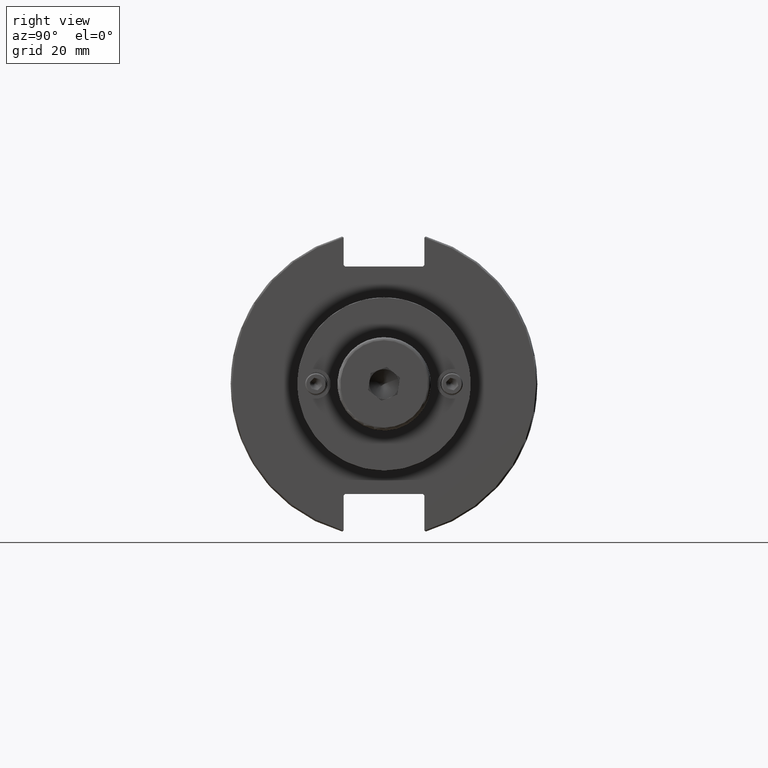
[diagram: clean part render]
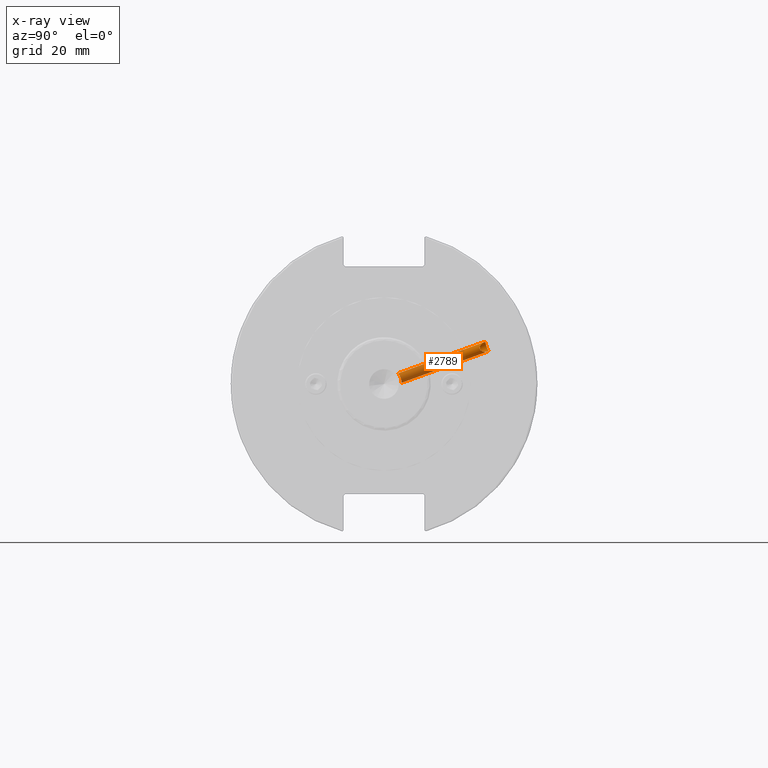
[diagram: x-ray — body ghosted, one internal face saturated and labeled with its STEP entity id]
A machine part, right view, then the same camera in x-ray: the body is ghosted and one INTERNAL B-rep face — a face not visible from any outside direction — is saturated and labeled: STEP entity #2789.
In plain terms, the highlighted cylindrical surface (bore or boss wall) has radius 1.621 mm, axis along (-0, 0.9397, 0.342).
Its self-contained STEP definition (entity closure, byte-faithful):
#483=B_SPLINE_CURVE_WITH_KNOTS('',3,(#4383,#4384,#4385,#4386,#4387,#4388,
#4389,#4390,#4391,#4392,#4393,#4394,#4395,#4396,#4397,#4398,#4399,#4400),
 .UNSPECIFIED.,.F.,.F.,(4,2,2,2,2,2,2,2,4),(0.532632743614117,0.552905902975805,
0.614346574803244,0.675772210762899,0.737197846722553,0.798623482682207,
0.860049118641861,0.921489790469301,0.941762949830991),.UNSPECIFIED.);
#485=B_SPLINE_CURVE_WITH_KNOTS('',3,(#4410,#4411,#4412,#4413,#4414,#4415,
#4416,#4417,#4418,#4419),.UNSPECIFIED.,.F.,.F.,(4,2,2,2,4),(0.245732615574182,
0.307158251533836,0.36858388749349,0.430024559320928,0.450297718682616),
 .UNSPECIFIED.);
#486=B_SPLINE_CURVE_WITH_KNOTS('',3,(#4421,#4422,#4423,#4424,#4425,#4426,
#4427,#4428,#4429,#4430),.UNSPECIFIED.,.F.,.F.,(4,2,2,2,4),(0.0411675124657458,
0.0614406718274373,0.122881343654875,0.184306979614528,0.245732615574182),
 .UNSPECIFIED.);
#490=B_SPLINE_CURVE_WITH_KNOTS('',3,(#4493,#4494,#4495,#4496,#4497,#4498,
#4499,#4500,#4501,#4502,#4503,#4504,#4505,#4506,#4507,#4508,#4509,#4510,
#4511,#4512,#4513,#4514,#4515,#4516,#4517,#4518,#4519,#4520,#4521,#4522,
#4523,#4524),.UNSPECIFIED.,.F.,.F.,(4,2,2,2,2,2,2,2,2,2,2,2,2,2,2,4),(0.,
0.0901464867254987,0.192567236071379,0.257828346844419,0.290458902230939,
0.32308945761746,0.35572001300398,0.3883505683905,0.45361167916354,0.556032428509421,
0.646178915234919,0.678611098115673,0.711043280996427,0.775907646757935,
0.842857882203167,0.896346031951307),.UNSPECIFIED.);
#491=B_SPLINE_CURVE_WITH_KNOTS('',3,(#4525,#4526,#4527,#4528,#4529,#4530,
#4531,#4532,#4533,#4534,#4535,#4536),.UNSPECIFIED.,.F.,.F.,(4,2,2,2,2,4),
(0.896346031951307,0.949834181699448,1.01678441714468,1.08164878290619,
1.11408096578694,1.14651314866769),.UNSPECIFIED.);
#529=CYLINDRICAL_SURFACE('',#3111,1.621);
#629=CIRCLE('',#3110,1.621);
#630=CIRCLE('',#3112,1.621);
#763=FACE_OUTER_BOUND('',#910,.T.);
#910=EDGE_LOOP('',(#2076,#2077,#2078,#2079,#2080,#2081,#2082,#2083,#2084));
#1084=LINE('',#4537,#1250);
#1250=VECTOR('',#3510,1.621);
#1425=VERTEX_POINT('',#4381);
#1426=VERTEX_POINT('',#4382);
#1427=VERTEX_POINT('',#4401);
#1428=VERTEX_POINT('',#4409);
#1429=VERTEX_POINT('',#4420);
#1432=VERTEX_POINT('',#4491);
#1433=VERTEX_POINT('',#4492);
#1675=EDGE_CURVE('',#1425,#1426,#483,.T.);
#1677=EDGE_CURVE('',#1428,#1427,#485,.T.);
#1678=EDGE_CURVE('',#1429,#1428,#486,.T.);
#1685=EDGE_CURVE('',#1425,#1427,#629,.T.);
#1686=EDGE_CURVE('',#1432,#1433,#490,.T.);
#1687=EDGE_CURVE('',#1433,#1432,#491,.T.);
#1688=EDGE_CURVE('',#1433,#1428,#1084,.T.);
#1689=EDGE_CURVE('',#1429,#1426,#630,.T.);
#2076=ORIENTED_EDGE('',*,*,#1686,.F.);
#2077=ORIENTED_EDGE('',*,*,#1687,.F.);
#2078=ORIENTED_EDGE('',*,*,#1688,.T.);
#2079=ORIENTED_EDGE('',*,*,#1677,.T.);
#2080=ORIENTED_EDGE('',*,*,#1685,.F.);
#2081=ORIENTED_EDGE('',*,*,#1675,.T.);
#2082=ORIENTED_EDGE('',*,*,#1689,.F.);
#2083=ORIENTED_EDGE('',*,*,#1678,.T.);
#2084=ORIENTED_EDGE('',*,*,#1688,.F.);
#2789=ADVANCED_FACE('',(#763),#529,.F.);
#3110=AXIS2_PLACEMENT_3D('',#4489,#3506,#3507);
#3111=AXIS2_PLACEMENT_3D('',#4490,#3508,#3509);
#3112=AXIS2_PLACEMENT_3D('',#4538,#3511,#3512);
#3506=DIRECTION('center_axis',(-1.32999192572579E-16,0.939692620785909,
0.342020143325669));
#3507=DIRECTION('ref_axis',(1.,1.41534784492982E-16,0.));
#3508=DIRECTION('center_axis',(-1.32999192572579E-16,0.939692620785909,
0.342020143325669));
#3509=DIRECTION('ref_axis',(1.,1.41534784492982E-16,0.));
#3510=DIRECTION('',(1.32999192572579E-16,-0.939692620785908,-0.342020143325669));
#3511=DIRECTION('center_axis',(-1.32999192572579E-16,0.939692620785909,
0.342020143325669));
#3512=DIRECTION('ref_axis',(1.,1.41534784492982E-16,0.));
#4381=CARTESIAN_POINT('',(11.5538280190791,5.6507234975058,0.390494039308961));
#4382=CARTESIAN_POINT('',(11.5538280190791,4.5797100649904,3.3330792610776));
#4383=CARTESIAN_POINT('Ctrl Pts',(11.5538280190791,5.6507234975058,0.390494039308961));
#4384=CARTESIAN_POINT('Ctrl Pts',(11.6224548012828,5.64940376916859,0.409591436899369));
#4385=CARTESIAN_POINT('Ctrl Pts',(11.6901900015519,5.64766161376943,0.433456015511925));
#4386=CARTESIAN_POINT('Ctrl Pts',(11.9555225294335,5.63834455086959,0.547373783800454));
#4387=CARTESIAN_POINT('Ctrl Pts',(12.1370246056885,5.62570197106737,0.675314247974925));
#4388=CARTESIAN_POINT('Ctrl Pts',(12.4235805113983,5.58333625420266,0.964840813510913));
#4389=CARTESIAN_POINT('Ctrl Pts',(12.5481564508145,5.55066479047596,1.14611512507693));
#4390=CARTESIAN_POINT('Ctrl Pts',(12.7139469390018,5.45560217506688,1.53618501532505));
#4391=CARTESIAN_POINT('Ctrl Pts',(12.7551,5.39263629203818,1.74486643969735));
#4392=CARTESIAN_POINT('Ctrl Pts',(12.7551,5.25257759327291,2.12967455195314));
#4393=CARTESIAN_POINT('Ctrl Pts',(12.7139469390018,5.16667442411487,2.33000748691952));
#4394=CARTESIAN_POINT('Ctrl Pts',(12.5481564508145,4.98876452003406,2.68992343010147));
#4395=CARTESIAN_POINT('Ctrl Pts',(12.4235805113983,4.89727143184138,2.84978842123069));
#4396=CARTESIAN_POINT('Ctrl Pts',(12.1370246056885,4.74362136482271,3.09881079577097));
#4397=CARTESIAN_POINT('Ctrl Pts',(11.9555225294335,4.67106759767799,3.20494537105323));
#4398=CARTESIAN_POINT('Ctrl Pts',(11.6901900015519,4.60497995195959,3.29820033701386));
#4399=CARTESIAN_POINT('Ctrl Pts',(11.6224548012827,4.59097466497963,3.31760150075213));
#4400=CARTESIAN_POINT('Ctrl Pts',(11.5538280190791,4.5797100649904,3.3330792610776));
#4401=CARTESIAN_POINT('',(10.7143719809208,5.6507234975058,0.390494039308961));
#4409=CARTESIAN_POINT('',(9.51309999999999,5.32260694265554,1.93727049582525));
#4410=CARTESIAN_POINT('Ctrl Pts',(9.51309999999999,5.32260694265554,1.93727049582525));
#4411=CARTESIAN_POINT('Ctrl Pts',(9.51309999999999,5.39263629203818,1.74486643969735));
#4412=CARTESIAN_POINT('Ctrl Pts',(9.55425306099822,5.45560217506688,1.53618501532505));
#4413=CARTESIAN_POINT('Ctrl Pts',(9.72004354918545,5.55066479047596,1.14611512507693));
#4414=CARTESIAN_POINT('Ctrl Pts',(9.84461948860173,5.58333625420266,0.964840813510918));
#4415=CARTESIAN_POINT('Ctrl Pts',(10.1311753943115,5.62570197106736,0.675314247974939));
#4416=CARTESIAN_POINT('Ctrl Pts',(10.3126774705665,5.63834455086958,0.547373783800459));
#4417=CARTESIAN_POINT('Ctrl Pts',(10.578009998448,5.64766161376943,0.43345601551193));
#4418=CARTESIAN_POINT('Ctrl Pts',(10.6457451987172,5.64940376916859,0.409591436899369));
#4419=CARTESIAN_POINT('Ctrl Pts',(10.7143719809208,5.6507234975058,0.390494039308961));
#4420=CARTESIAN_POINT('',(10.7143719809209,4.5797100649904,3.3330792610776));
#4421=CARTESIAN_POINT('Ctrl Pts',(10.7143719809209,4.5797100649904,3.3330792610776));
#4422=CARTESIAN_POINT('Ctrl Pts',(10.6457451987172,4.59097466497963,3.31760150075213));
#4423=CARTESIAN_POINT('Ctrl Pts',(10.5780099984481,4.6049799519596,3.29820033701386));
#4424=CARTESIAN_POINT('Ctrl Pts',(10.3126774705665,4.67106759767799,3.20494537105323));
#4425=CARTESIAN_POINT('Ctrl Pts',(10.1311753943115,4.74362136482272,3.09881079577096));
#4426=CARTESIAN_POINT('Ctrl Pts',(9.84461948860173,4.89727143184138,2.84978842123068));
#4427=CARTESIAN_POINT('Ctrl Pts',(9.72004354918545,4.98876452003406,2.68992343010148));
#4428=CARTESIAN_POINT('Ctrl Pts',(9.55425306099822,5.16667442411486,2.33000748691953));
#4429=CARTESIAN_POINT('Ctrl Pts',(9.51309999999999,5.25257759327291,2.12967455195314));
#4430=CARTESIAN_POINT('Ctrl Pts',(9.51309999999999,5.32260694265554,1.93727049582525));
#4489=CARTESIAN_POINT('Origin',(11.1341,5.1152167812481,1.86178665019328));
#4490=CARTESIAN_POINT('Origin',(11.1341,23.9090691969663,8.70218951670665));
#4491=CARTESIAN_POINT('',(11.1341,33.313335016979,10.4000301811349));
#4492=CARTESIAN_POINT('',(9.51309999999999,32.9255829555454,11.9839321416811));
#4493=CARTESIAN_POINT('Ctrl Pts',(11.1341,33.313335016979,10.4000301811349));
#4494=CARTESIAN_POINT('Ctrl Pts',(11.3802455962889,33.1513761728118,10.3410819826819));
#4495=CARTESIAN_POINT('Ctrl Pts',(11.6185813616689,32.8827152960876,10.3088388227607));
#4496=CARTESIAN_POINT('Ctrl Pts',(12.0026245261189,32.3683985728797,10.305241826661));
#4497=CARTESIAN_POINT('Ctrl Pts',(12.2151564972204,32.0202637587832,10.3436146141384));
#4498=CARTESIAN_POINT('Ctrl Pts',(12.470544244763,31.5456859836842,10.4918253969895));
#4499=CARTESIAN_POINT('Ctrl Pts',(12.5682510694473,31.3466778285718,10.5797338737154));
#4500=CARTESIAN_POINT('Ctrl Pts',(12.6749644342972,31.0919332722504,10.7712375769509));
#4501=CARTESIAN_POINT('Ctrl Pts',(12.7040411918509,31.0141779263436,10.8449328856202));
#4502=CARTESIAN_POINT('Ctrl Pts',(12.7440975493615,30.8830267246802,11.0119800058459));
#4503=CARTESIAN_POINT('Ctrl Pts',(12.7551,30.8296132843075,11.1053125302729));
#4504=CARTESIAN_POINT('Ctrl Pts',(12.7551,30.7552112361069,11.3097304776653));
#4505=CARTESIAN_POINT('Ctrl Pts',(12.7440975493615,30.7361353150098,11.4155608370271));
#4506=CARTESIAN_POINT('Ctrl Pts',(12.7040411918509,30.7292271451376,11.6278287226398));
#4507=CARTESIAN_POINT('Ctrl Pts',(12.6749644342972,30.7414207644876,11.7342627772656));
#4508=CARTESIAN_POINT('Ctrl Pts',(12.5682510694473,30.8134702086235,12.0447097694044));
#4509=CARTESIAN_POINT('Ctrl Pts',(12.470544244763,30.9094128203569,12.2399715458362));
#4510=CARTESIAN_POINT('Ctrl Pts',(12.2151564972204,31.1776924329606,12.6585603061157));
#4511=CARTESIAN_POINT('Ctrl Pts',(12.0026245261189,31.419713620416,12.9117323117316));
#4512=CARTESIAN_POINT('Ctrl Pts',(11.6185813616689,31.8160151927575,13.2395732699901));
#4513=CARTESIAN_POINT('Ctrl Pts',(11.3802455962889,32.04254686815,13.3875654592698));
#4514=CARTESIAN_POINT('Ctrl Pts',(11.0455437036416,32.2627739715027,13.4677215696688));
#4515=CARTESIAN_POINT('Ctrl Pts',(10.9490410684419,32.3178177707779,13.4799176447313));
#4516=CARTESIAN_POINT('Ctrl Pts',(10.7480580973579,32.4122554138726,13.4760148069679));
#4517=CARTESIAN_POINT('Ctrl Pts',(10.6435548972,32.4515923889905,13.4597199648405));
#4518=CARTESIAN_POINT('Ctrl Pts',(10.3366162582338,32.5470684103066,13.3661104048289));
#4519=CARTESIAN_POINT('Ctrl Pts',(10.1402784858692,32.5832298796224,13.2412869364784));
#4520=CARTESIAN_POINT('Ctrl Pts',(9.83058058671521,32.6561835398779,12.9382662768301));
#4521=CARTESIAN_POINT('Ctrl Pts',(9.68758434388227,32.703450459206,12.7168272168347));
#4522=CARTESIAN_POINT('Ctrl Pts',(9.55039858081597,32.8019228385611,12.3526096727086));
#4523=CARTESIAN_POINT('Ctrl Pts',(9.51309999999999,32.8646028734018,12.1514735404072));
#4524=CARTESIAN_POINT('Ctrl Pts',(9.51309999999999,32.9255829555454,11.9839321416811));
#4525=CARTESIAN_POINT('Ctrl Pts',(9.51309999999999,32.9255829555454,11.9839321416811));
#4526=CARTESIAN_POINT('Ctrl Pts',(9.51309999999999,32.986563037689,11.8163907429551));
#4527=CARTESIAN_POINT('Ctrl Pts',(9.55039858081596,33.0678351590084,11.6220215767248));
#4528=CARTESIAN_POINT('Ctrl Pts',(9.68758434388227,33.2265154645974,11.2797179256148));
#4529=CARTESIAN_POINT('Ctrl Pts',(9.83058058671521,33.3326451877684,11.0797031741237));
#4530=CARTESIAN_POINT('Ctrl Pts',(10.1402784858692,33.4715373672255,10.8006821727563));
#4531=CARTESIAN_POINT('Ctrl Pts',(10.3366162582338,33.524071053455,10.6818177040313));
#4532=CARTESIAN_POINT('Ctrl Pts',(10.6435548972,33.5111032431983,10.5487378172375));
#4533=CARTESIAN_POINT('Ctrl Pts',(10.7480580973579,33.4914434946215,10.5109699237659));
#4534=CARTESIAN_POINT('Ctrl Pts',(10.949041068442,33.4216087586644,10.4472768297156));
#4535=CARTESIAN_POINT('Ctrl Pts',(11.0455437036416,33.3716032761645,10.4212380930809));
#4536=CARTESIAN_POINT('Ctrl Pts',(11.1341,33.313335016979,10.4000301811349));
#4537=CARTESIAN_POINT('',(9.51309999999999,23.9090691969663,8.70218951670665));
#4538=CARTESIAN_POINT('Origin',(11.1341,5.1152167812481,1.86178665019328));